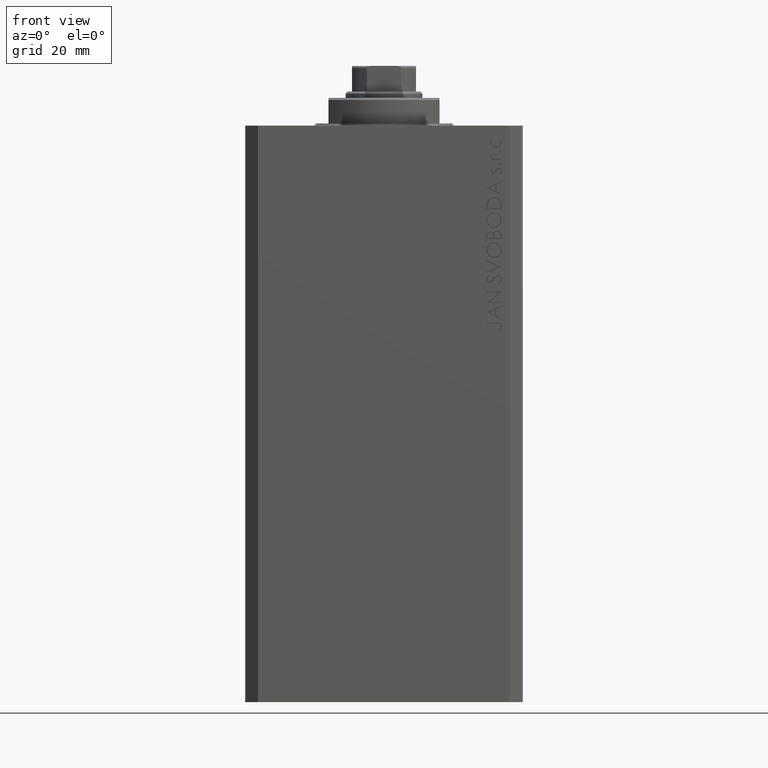
[diagram: clean part render]
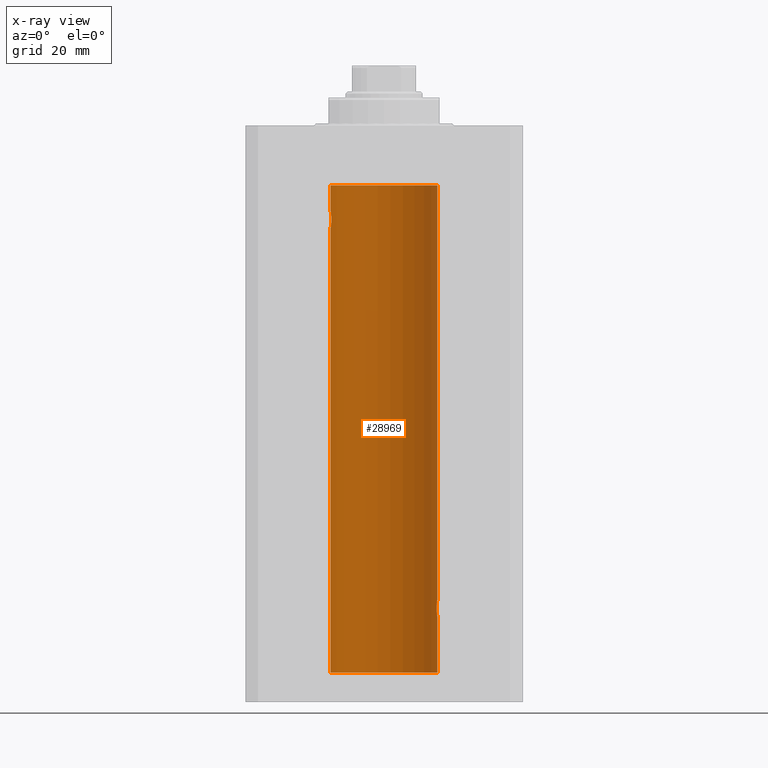
[diagram: x-ray — body ghosted, one internal face saturated and labeled with its STEP entity id]
A machine part, front view, then the same camera in x-ray: the body is ghosted and one INTERNAL B-rep face — a face not visible from any outside direction — is saturated and labeled: STEP entity #28969.
In plain terms, the highlighted cylindrical surface (partial cylindrical patch) has radius 12.5 mm, axis along (0, 0, 1).
Its self-contained STEP definition (entity closure, byte-faithful):
#537 = VERTEX_POINT ( 'NONE', #24069 ) ;
#794 = LINE ( 'NONE', #21814, #31990 ) ;
#1660 = CARTESIAN_POINT ( 'NONE',  ( -12.48983485452574982, 0.5201193324741355539, -23.93561774521849372 ) ) ;
#1661 = EDGE_CURVE ( 'NONE', #28437, #537, #32992, .T. ) ;
#2013 = VECTOR ( 'NONE', #16690, 1000.000000000000000 ) ;
#2606 = CARTESIAN_POINT ( 'NONE',  ( -12.35517291625592051, 1.897967064543089721, -22.64415233770293412 ) ) ;
#2690 = FACE_OUTER_BOUND ( 'NONE', #32020, .T. ) ;
#2916 = CARTESIAN_POINT ( 'NONE',  ( 12.34924836377099844, 1.935649219704934865, -112.4800206212716489 ) ) ;
#3906 = VECTOR ( 'NONE', #44549, 1000.000000000000000 ) ;
#4833 = ORIENTED_EDGE ( 'NONE', *, *, #18975, .F. ) ;
#5215 = CARTESIAN_POINT ( 'NONE',  ( -12.50000000000000000, 1.530808498934191521E-15, -128.0999999999999943 ) ) ;
#5330 = CARTESIAN_POINT ( 'NONE',  ( 12.46019522898365217, 1.002712894177336223, -114.7354089602760183 ) ) ;
#5480 = CARTESIAN_POINT ( 'NONE',  ( -12.48990118705761532, 0.5184196815546056047, -20.06395648222637007 ) ) ;
#5690 = LINE ( 'NONE', #5215, #2013 ) ;
#5705 = ORIENTED_EDGE ( 'NONE', *, *, #41170, .T. ) ;
#5711 = CARTESIAN_POINT ( 'NONE',  ( -12.46909283808506430, 0.8868029758979402155, -23.79742491916155345 ) ) ;
#5794 = CARTESIAN_POINT ( 'NONE',  ( 12.46011632531798874, 1.003644408234883434, -111.2651679968767411 ) ) ;
#5942 = CARTESIAN_POINT ( 'NONE',  ( -12.50000000000000000, 1.530808426276628993E-15, -23.99999999999999645 ) ) ;
#7582 = VERTEX_POINT ( 'NONE', #38647 ) ;
#8342 = VERTEX_POINT ( 'NONE', #14427 ) ;
#8491 = ORIENTED_EDGE ( 'NONE', *, *, #44577, .T. ) ;
#9113 = CARTESIAN_POINT ( 'NONE',  ( 0.000000000000000000, 0.000000000000000000, -128.0999999999999943 ) ) ;
#9391 = CARTESIAN_POINT ( 'NONE',  ( 12.39867611624532806, 1.590019252152828910, -111.7798449592961276 ) ) ;
#9535 = CARTESIAN_POINT ( 'NONE',  ( -12.33895470450623044, 2.000049200055401766, -22.12992629360264729 ) ) ;
#9859 = DIRECTION ( 'NONE',  ( 1.000000000000000000, 0.000000000000000000, 0.000000000000000000 ) ) ;
#10014 = CARTESIAN_POINT ( 'NONE',  ( -12.49789934882883458, 0.2624928479599910047, -20.01301208516349917 ) ) ;
#10090 = CARTESIAN_POINT ( 'NONE',  ( 12.33896267925302581, 2.000000000000247358, -112.8693470594991908 ) ) ;
#11153 = ORIENTED_EDGE ( 'NONE', *, *, #46101, .F. ) ;
#11608 = EDGE_CURVE ( 'NONE', #8342, #36142, #24553, .T. ) ;
#12273 = CARTESIAN_POINT ( 'NONE',  ( 12.50000000000000000, 2.320363022323678888E-15, -115.0000000000000142 ) ) ;
#12657 = CARTESIAN_POINT ( 'NONE',  ( -12.46903010196599304, 0.8876934327478135378, -20.20300788371381984 ) ) ;
#12890 = CARTESIAN_POINT ( 'NONE',  ( -12.43019346654084956, 1.322451657002078340, -20.49398366327208620 ) ) ;
#13215 = CARTESIAN_POINT ( 'NONE',  ( 12.44079900692650931, 1.220007525301739282, -114.5901757908366818 ) ) ;
#13446 = CYLINDRICAL_SURFACE ( 'NONE', #18332, 12.50000000000000000 ) ;
#13554 = ORIENTED_EDGE ( 'NONE', *, *, #1661, .T. ) ;
#13591 = CARTESIAN_POINT ( 'NONE',  ( -12.39864157855465088, 1.590288205413973532, -23.21980790594580313 ) ) ;
#13916 = CARTESIAN_POINT ( 'NONE',  ( 12.48395395845270528, 0.6446573166014707423, -111.1022212421351725 ) ) ;
#14427 = CARTESIAN_POINT ( 'NONE',  ( -12.50000000000000000, 1.867773856434666690E-17, -20.00000000000000000 ) ) ;
#15052 = ORIENTED_EDGE ( 'NONE', *, *, #17331, .T. ) ;
#15423 = LINE ( 'NONE', #38075, #45623 ) ;
#15595 = DIRECTION ( 'NONE',  ( -0.000000000000000000, -0.000000000000000000, 1.000000000000000000 ) ) ;
#16052 = DIRECTION ( 'NONE',  ( 0.000000000000000000, 0.000000000000000000, 1.000000000000000000 ) ) ;
#16690 = DIRECTION ( 'NONE',  ( -0.000000000000000000, -0.000000000000000000, 1.000000000000000000 ) ) ;
#16803 = CARTESIAN_POINT ( 'NONE',  ( 12.44079117518645639, 1.220047488436368122, -111.4098967633508437 ) ) ;
#16955 = CARTESIAN_POINT ( 'NONE',  ( -12.40913174964213184, 1.507394620545641439, -23.32102833500698225 ) ) ;
#17038 = CARTESIAN_POINT ( 'NONE',  ( 12.34110728646152388, 1.986893050944454453, -112.7366134776498399 ) ) ;
#17331 = EDGE_CURVE ( 'NONE', #25460, #28437, #15423, .T. ) ;
#17440 = CARTESIAN_POINT ( 'NONE',  ( 12.50000000000000000, 2.320363022323678888E-15, -115.0000000000000142 ) ) ;
#18332 = AXIS2_PLACEMENT_3D ( 'NONE', #27987, #42545, #9859 ) ;
#18975 = EDGE_CURVE ( 'NONE', #41805, #7582, #46416, .T. ) ;
#19673 = CARTESIAN_POINT ( 'NONE',  ( 12.34779119491631683, 1.947363444907009633, -113.5250277516825577 ) ) ;
#19728 = CARTESIAN_POINT ( 'NONE',  ( -12.50000000000000000, 1.530808426276628993E-15, -23.99999999999999645 ) ) ;
#20063 = CARTESIAN_POINT ( 'NONE',  ( -12.43034574091277911, 1.321095788880539024, -23.50733550364322255 ) ) ;
#20293 = CARTESIAN_POINT ( 'NONE',  ( -12.34922241902463114, 1.935814255713574239, -22.51937350851555308 ) ) ;
#20372 = CARTESIAN_POINT ( 'NONE',  ( 12.49999999999999822, 0.1306079576516667173, -111.0000000000000000 ) ) ;
#20525 = CARTESIAN_POINT ( 'NONE',  ( -12.50000000000000000, 0.1323736289504353625, -20.00000000000000000 ) ) ;
#21814 = CARTESIAN_POINT ( 'NONE',  ( 12.50000000000000000, 0.000000000000000000, -128.0999999999999943 ) ) ;
#22333 = AXIS2_PLACEMENT_3D ( 'NONE', #31182, #27605, #23788 ) ;
#22407 = CARTESIAN_POINT ( 'NONE',  ( 12.50000000000000000, 0.000000000000000000, -128.0999999999999943 ) ) ;
#23026 = VERTEX_POINT ( 'NONE', #17440 ) ;
#23625 = CARTESIAN_POINT ( 'NONE',  ( -12.33897869807161385, 1.999901172190678089, -21.73788193668374547 ) ) ;
#23707 = CARTESIAN_POINT ( 'NONE',  ( 12.40916530024876430, 1.507117913375715990, -111.6786595504900532 ) ) ;
#23712 = CARTESIAN_POINT ( 'NONE',  ( 12.37760587642916477, 1.747868572747719229, -114.0063965316900152 ) ) ;
#23788 = DIRECTION ( 'NONE',  ( 1.000000000000000000, 0.000000000000000000, 0.000000000000000000 ) ) ;
#23856 = CARTESIAN_POINT ( 'NONE',  ( -12.46021263690096958, 1.002494658017156981, -20.26446744561863156 ) ) ;
#24069 = CARTESIAN_POINT ( 'NONE',  ( -12.50000000000000000, 1.530808498934191521E-15, -13.99999999999999822 ) ) ;
#24089 = CARTESIAN_POINT ( 'NONE',  ( -12.44076681548080288, 1.220297236145718944, -23.58991408680628155 ) ) ;
#24176 = CARTESIAN_POINT ( 'NONE',  ( 12.39869754437268590, 1.598954131913722820, -114.2293215281301286 ) ) ;
#24255 = ORIENTED_EDGE ( 'NONE', *, *, #31777, .F. ) ;
#24553 = B_SPLINE_CURVE_WITH_KNOTS ( 'NONE', 3,
 ( #27903, #20525, #10014, #5480, #30783, #12657, #23856, #31256, #12890, #38182, #45567, #34619, #23625, #9535, #46280, #20293, #2606, #27441, #45811, #13591, #16955, #20063, #24089, #41990, #5711, #45337, #1660, #38645, #34849, #5942 ),
 .UNSPECIFIED., .F., .F.,
 ( 4, 2, 2, 2, 2, 2, 2, 2, 2, 2, 2, 2, 2, 2, 4 ),
 ( 1.814683826656258666E-20, 0.0003914362731607577369, 0.0007828725463215154739, 0.001174308819482273265, 0.001565745092643030948, 0.002348617638964546530, 0.003131490185286061895, 0.003522926458446825216, 0.003914362731607588103, 0.004305799004768351423, 0.004697235277929114744, 0.005088671551089878065, 0.005480107824250641385, 0.005871544097411404706, 0.006262980370572168026 ),
 .UNSPECIFIED. ) ;
#25460 = VERTEX_POINT ( 'NONE', #30581 ) ;
#25830 = AXIS2_PLACEMENT_3D ( 'NONE', #9113, #16052, #26774 ) ;
#26567 = B_SPLINE_CURVE_WITH_KNOTS ( 'NONE', 3,
 ( #12273, #31345, #38034, #45900, #38730, #44955, #5330, #13215, #27761, #24176, #23712, #19673, #34467, #26819 ),
 .UNSPECIFIED., .F., .F.,
 ( 4, 2, 2, 2, 2, 2, 4 ),
 ( 2.254408494944823136E-18, 0.0003915305205218102386, 0.0007830610410436180920, 0.001174591561565426108, 0.001566122082087234016, 0.002349183123130850048, 0.003132244164174466730 ),
 .UNSPECIFIED. ) ;
#26774 = DIRECTION ( 'NONE',  ( 1.000000000000000000, 0.000000000000000000, 0.000000000000000000 ) ) ;
#26819 = CARTESIAN_POINT ( 'NONE',  ( 12.33896267925302759, 2.000000000000247802, -113.0000000000000142 ) ) ;
#27441 = CARTESIAN_POINT ( 'NONE',  ( -12.37018026341338839, 1.797558627508998086, -22.88656313533016373 ) ) ;
#27605 = DIRECTION ( 'NONE',  ( 0.000000000000000000, 0.000000000000000000, 1.000000000000000000 ) ) ;
#27761 = CARTESIAN_POINT ( 'NONE',  ( 12.43016561391612917, 1.322713721413880661, -114.5057887783670481 ) ) ;
#27903 = CARTESIAN_POINT ( 'NONE',  ( -12.50000000000000000, 1.867773856434666690E-17, -20.00000000000000000 ) ) ;
#27982 = CARTESIAN_POINT ( 'NONE',  ( 12.37925647381943506, 1.734744884174218571, -111.9962073259865178 ) ) ;
#27987 = CARTESIAN_POINT ( 'NONE',  ( 0.000000000000000000, 0.000000000000000000, -128.0999999999999943 ) ) ;
#28224 = CARTESIAN_POINT ( 'NONE',  ( 12.43037348241797524, 1.320834183883837554, -111.4924383770429586 ) ) ;
#28437 = VERTEX_POINT ( 'NONE', #38098 ) ;
#28462 = CARTESIAN_POINT ( 'NONE',  ( 12.37021546997940291, 1.797317011867403114, -112.1129511974107942 ) ) ;
#28847 = EDGE_CURVE ( 'NONE', #23026, #43610, #26567, .T. ) ;
#28969 = ADVANCED_FACE ( 'NONE', ( #2690 ), #13446, .F. ) ;
#30581 = CARTESIAN_POINT ( 'NONE',  ( 12.50000000000000000, -7.266276684081261841E-23, -111.0000000000000142 ) ) ;
#30783 = CARTESIAN_POINT ( 'NONE',  ( -12.48390768591463207, 0.6455696738844916016, -20.10252270298193977 ) ) ;
#31182 = CARTESIAN_POINT ( 'NONE',  ( 0.000000000000000000, 0.000000000000000000, -13.99999999999999822 ) ) ;
#31256 = CARTESIAN_POINT ( 'NONE',  ( -12.44082361696003503, 1.219754986802281449, -20.40963319990594016 ) ) ;
#31345 = CARTESIAN_POINT ( 'NONE',  ( 12.50000000000000178, 0.1324055009716466613, -115.0000000000000568 ) ) ;
#31469 = ORIENTED_EDGE ( 'NONE', *, *, #28847, .T. ) ;
#31694 = ORIENTED_EDGE ( 'NONE', *, *, #11608, .T. ) ;
#31777 = EDGE_CURVE ( 'NONE', #8342, #537, #5690, .T. ) ;
#31990 = VECTOR ( 'NONE', #15595, 1000.000000000000000 ) ;
#32020 = EDGE_LOOP ( 'NONE', ( #11153, #4833, #5705, #31469, #8491, #15052, #13554, #24255, #31694 ) ) ;
#32992 = CIRCLE ( 'NONE', #22333, 12.50000000000000000 ) ;
#33341 = CARTESIAN_POINT ( 'NONE',  ( -12.50000000000000000, 1.530808498934191521E-15, -128.0999999999999943 ) ) ;
#34467 = CARTESIAN_POINT ( 'NONE',  ( 12.33896267925302759, 2.000000000000248246, -113.2614317422079040 ) ) ;
#34619 = CARTESIAN_POINT ( 'NONE',  ( -12.34781876294798053, 1.947190906025043633, -21.47436412829509678 ) ) ;
#34849 = CARTESIAN_POINT ( 'NONE',  ( -12.50000000000000533, 0.1306394121199390135, -24.00000000000000711 ) ) ;
#35165 = CARTESIAN_POINT ( 'NONE',  ( 12.48983962833819028, 0.5199974825204898288, -111.0643516080801874 ) ) ;
#36142 = VERTEX_POINT ( 'NONE', #19728 ) ;
#38034 = CARTESIAN_POINT ( 'NONE',  ( 12.49789833780794446, 0.2625555164371021766, -114.9869817082214496 ) ) ;
#38075 = CARTESIAN_POINT ( 'NONE',  ( 12.50000000000000000, 0.000000000000000000, -128.0999999999999943 ) ) ;
#38098 = CARTESIAN_POINT ( 'NONE',  ( 12.50000000000000000, 0.000000000000000000, -13.99999999999999822 ) ) ;
#38182 = CARTESIAN_POINT ( 'NONE',  ( -12.39873273758732175, 1.598680238462371062, -20.77033506126851137 ) ) ;
#38268 = CARTESIAN_POINT ( 'NONE',  ( 12.46910683544638232, 0.8866026273585037032, -111.2024786368969700 ) ) ;
#38645 = CARTESIAN_POINT ( 'NONE',  ( -12.49788564268284041, 0.2633501011236127343, -23.98690384766255335 ) ) ;
#38647 = CARTESIAN_POINT ( 'NONE',  ( -12.50000000000000000, 1.530808498934191521E-15, -128.0999999999999943 ) ) ;
#38730 = CARTESIAN_POINT ( 'NONE',  ( 12.48390005916863110, 0.6457215011736527899, -114.8974277155426762 ) ) ;
#39839 = B_SPLINE_CURVE_WITH_KNOTS ( 'NONE', 3,
 ( #46606, #10090, #17038, #2916, #45894, #28462, #27982, #9391, #23707, #28224, #16803, #5794, #38268, #13916, #35165, #42787, #20372, #46362 ),
 .UNSPECIFIED., .F., .F.,
 ( 4, 2, 2, 2, 2, 2, 2, 2, 4 ),
 ( 0.003132244164174466730, 0.003523586189974241625, 0.003914928215774016521, 0.004306270241573791416, 0.004697612267373566311, 0.005088954293173341206, 0.005480296318973116101, 0.005871638344772890997, 0.006262980370572665892 ),
 .UNSPECIFIED. ) ;
#41170 = EDGE_CURVE ( 'NONE', #41805, #23026, #794, .T. ) ;
#41642 = DIRECTION ( 'NONE',  ( -0.000000000000000000, -0.000000000000000000, 1.000000000000000000 ) ) ;
#41805 = VERTEX_POINT ( 'NONE', #22407 ) ;
#41990 = CARTESIAN_POINT ( 'NONE',  ( -12.46009879577771606, 1.003863686549169465, -23.73470742397611843 ) ) ;
#42545 = DIRECTION ( 'NONE',  ( -0.000000000000000000, -0.000000000000000000, 1.000000000000000000 ) ) ;
#42787 = CARTESIAN_POINT ( 'NONE',  ( 12.49788668346399945, 0.2632864803365707607, -111.0130897583833729 ) ) ;
#43534 = CARTESIAN_POINT ( 'NONE',  ( 12.33896267925302759, 2.000000000000247802, -113.0000000000000142 ) ) ;
#43610 = VERTEX_POINT ( 'NONE', #43534 ) ;
#44549 = DIRECTION ( 'NONE',  ( -0.000000000000000000, -0.000000000000000000, 1.000000000000000000 ) ) ;
#44577 = EDGE_CURVE ( 'NONE', #43610, #25460, #39839, .T. ) ;
#44955 = CARTESIAN_POINT ( 'NONE',  ( 12.46901623405144122, 0.8878913781257877780, -114.7968965171754974 ) ) ;
#45257 = LINE ( 'NONE', #33341, #3906 ) ;
#45337 = CARTESIAN_POINT ( 'NONE',  ( -12.48394649977302073, 0.6448065707253024526, -23.89773031393659153 ) ) ;
#45567 = CARTESIAN_POINT ( 'NONE',  ( -12.37764291807175354, 1.747608771958140794, -20.99316879552500481 ) ) ;
#45623 = VECTOR ( 'NONE', #41642, 1000.000000000000000 ) ;
#45811 = CARTESIAN_POINT ( 'NONE',  ( -12.37922086519035325, 1.734998657226764829, -23.00335814299181436 ) ) ;
#45894 = CARTESIAN_POINT ( 'NONE',  ( 12.35520276972935427, 1.897773362058238877, -112.3552827863433947 ) ) ;
#45900 = CARTESIAN_POINT ( 'NONE',  ( 12.48989642018887736, 0.5185418732824252919, -114.9360129218760704 ) ) ;
#46101 = EDGE_CURVE ( 'NONE', #7582, #36142, #45257, .T. ) ;
#46280 = CARTESIAN_POINT ( 'NONE',  ( -12.34109209020652465, 1.986986967296539897, -22.26269462454597914 ) ) ;
#46362 = CARTESIAN_POINT ( 'NONE',  ( 12.50000000000000000, -7.266276684081261841E-23, -111.0000000000000142 ) ) ;
#46416 = CIRCLE ( 'NONE', #25830, 12.50000000000000000 ) ;
#46606 = CARTESIAN_POINT ( 'NONE',  ( 12.33896267925302759, 2.000000000000247802, -113.0000000000000142 ) ) ;